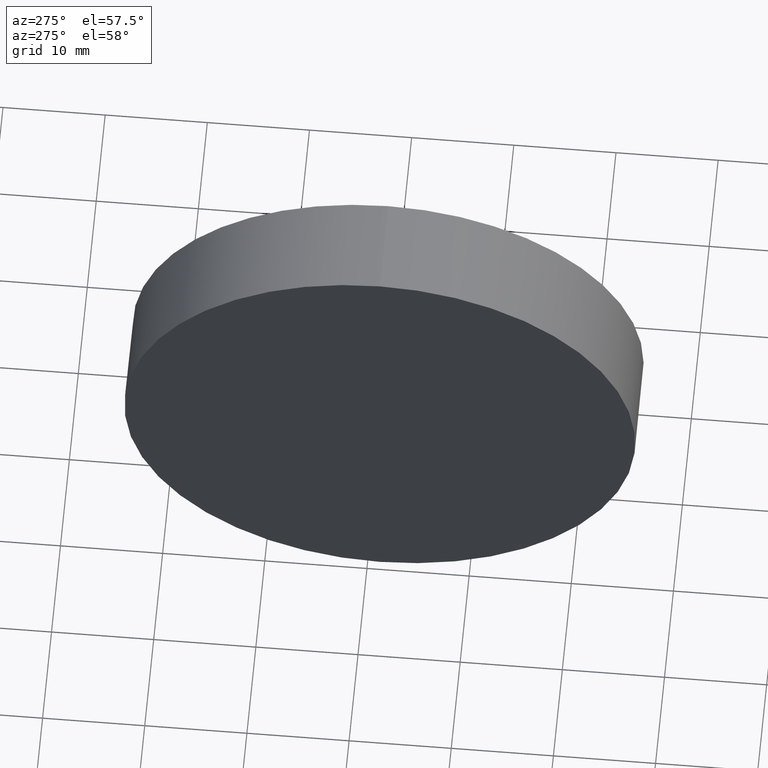
[diagram: clean part render]
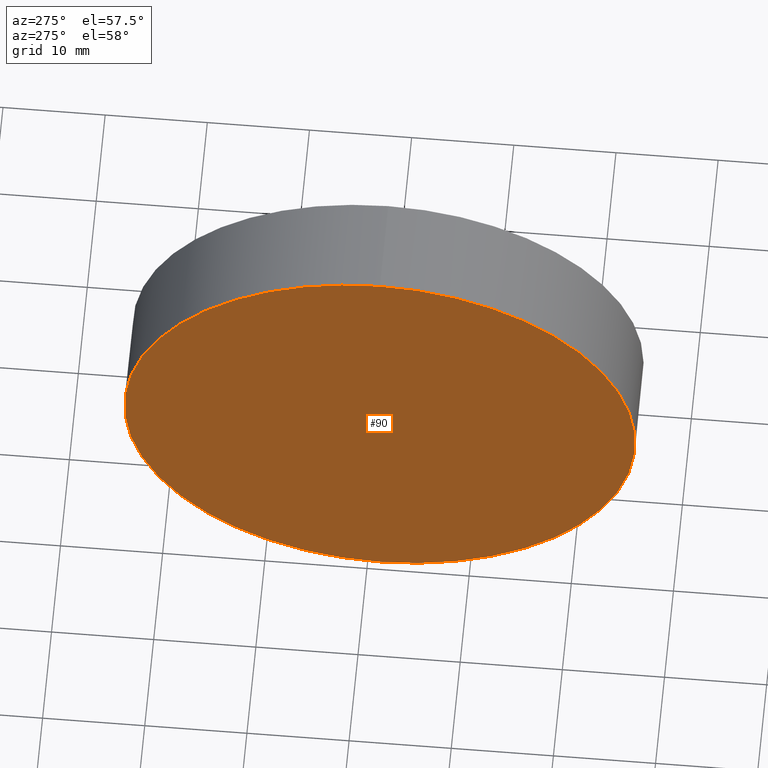
[diagram: same view with one face highlighted and labeled with its STEP entity id]
A machine part, auxiliary view. The second image highlights one B-rep face of the part: STEP entity #90.
In plain terms, the highlighted planar face has unit normal (1, 0, 0).
Its self-contained STEP definition (entity closure, byte-faithful):
#4 = AXIS2_PLACEMENT_3D ( 'NONE', #45, #141, #72 ) ;
#10 = CARTESIAN_POINT ( 'NONE',  ( 230.1853110698390300, 138.7560422467448700, 0.0000000000000000000 ) ) ;
#12 = AXIS2_PLACEMENT_3D ( 'NONE', #10, #66, #128 ) ;
#30 = DIRECTION ( 'NONE',  ( 0.0000000000000000000, 0.0000000000000000000, 1.000000000000000000 ) ) ;
#43 = ORIENTED_EDGE ( 'NONE', *, *, #83, .T. ) ;
#45 = CARTESIAN_POINT ( 'NONE',  ( 230.1853110698390300, 138.7560422467448700, 0.0000000000000000000 ) ) ;
#47 = FACE_OUTER_BOUND ( 'NONE', #154, .T. ) ;
#64 = CARTESIAN_POINT ( 'NONE',  ( 230.1853110698390300, 138.7560422467448700, -24.99999999999999600 ) ) ;
#66 = DIRECTION ( 'NONE',  ( -1.000000000000000000, -0.0000000000000000000, -0.0000000000000000000 ) ) ;
#72 = DIRECTION ( 'NONE',  ( 0.0000000000000000000, 0.0000000000000000000, -1.000000000000000000 ) ) ;
#73 = DIRECTION ( 'NONE',  ( -1.000000000000000000, -0.0000000000000000000, -0.0000000000000000000 ) ) ;
#83 = EDGE_CURVE ( 'NONE', #153, #110, #125, .T. ) ;
#84 = ORIENTED_EDGE ( 'NONE', *, *, #105, .T. ) ;
#85 = CARTESIAN_POINT ( 'NONE',  ( 230.1853110698390300, 138.7560422467448700, 0.0000000000000000000 ) ) ;
#90 = ADVANCED_FACE ( 'NONE', ( #47 ), #142, .F. ) ;
#105 = EDGE_CURVE ( 'NONE', #110, #153, #184, .T. ) ;
#110 = VERTEX_POINT ( 'NONE', #64 ) ;
#125 = CIRCLE ( 'NONE', #174, 24.99999999999999300 ) ;
#128 = DIRECTION ( 'NONE',  ( 0.0000000000000000000, 0.0000000000000000000, 1.000000000000000000 ) ) ;
#130 = CARTESIAN_POINT ( 'NONE',  ( 230.1853110698390300, 138.7560422467448700, 24.99999999999999300 ) ) ;
#141 = DIRECTION ( 'NONE',  ( 1.000000000000000000, 0.0000000000000000000, 0.0000000000000000000 ) ) ;
#142 = PLANE ( 'NONE',  #4 ) ;
#153 = VERTEX_POINT ( 'NONE', #130 ) ;
#154 = EDGE_LOOP ( 'NONE', ( #43, #84 ) ) ;
#174 = AXIS2_PLACEMENT_3D ( 'NONE', #85, #73, #30 ) ;
#184 = CIRCLE ( 'NONE', #12, 24.99999999999999300 ) ;